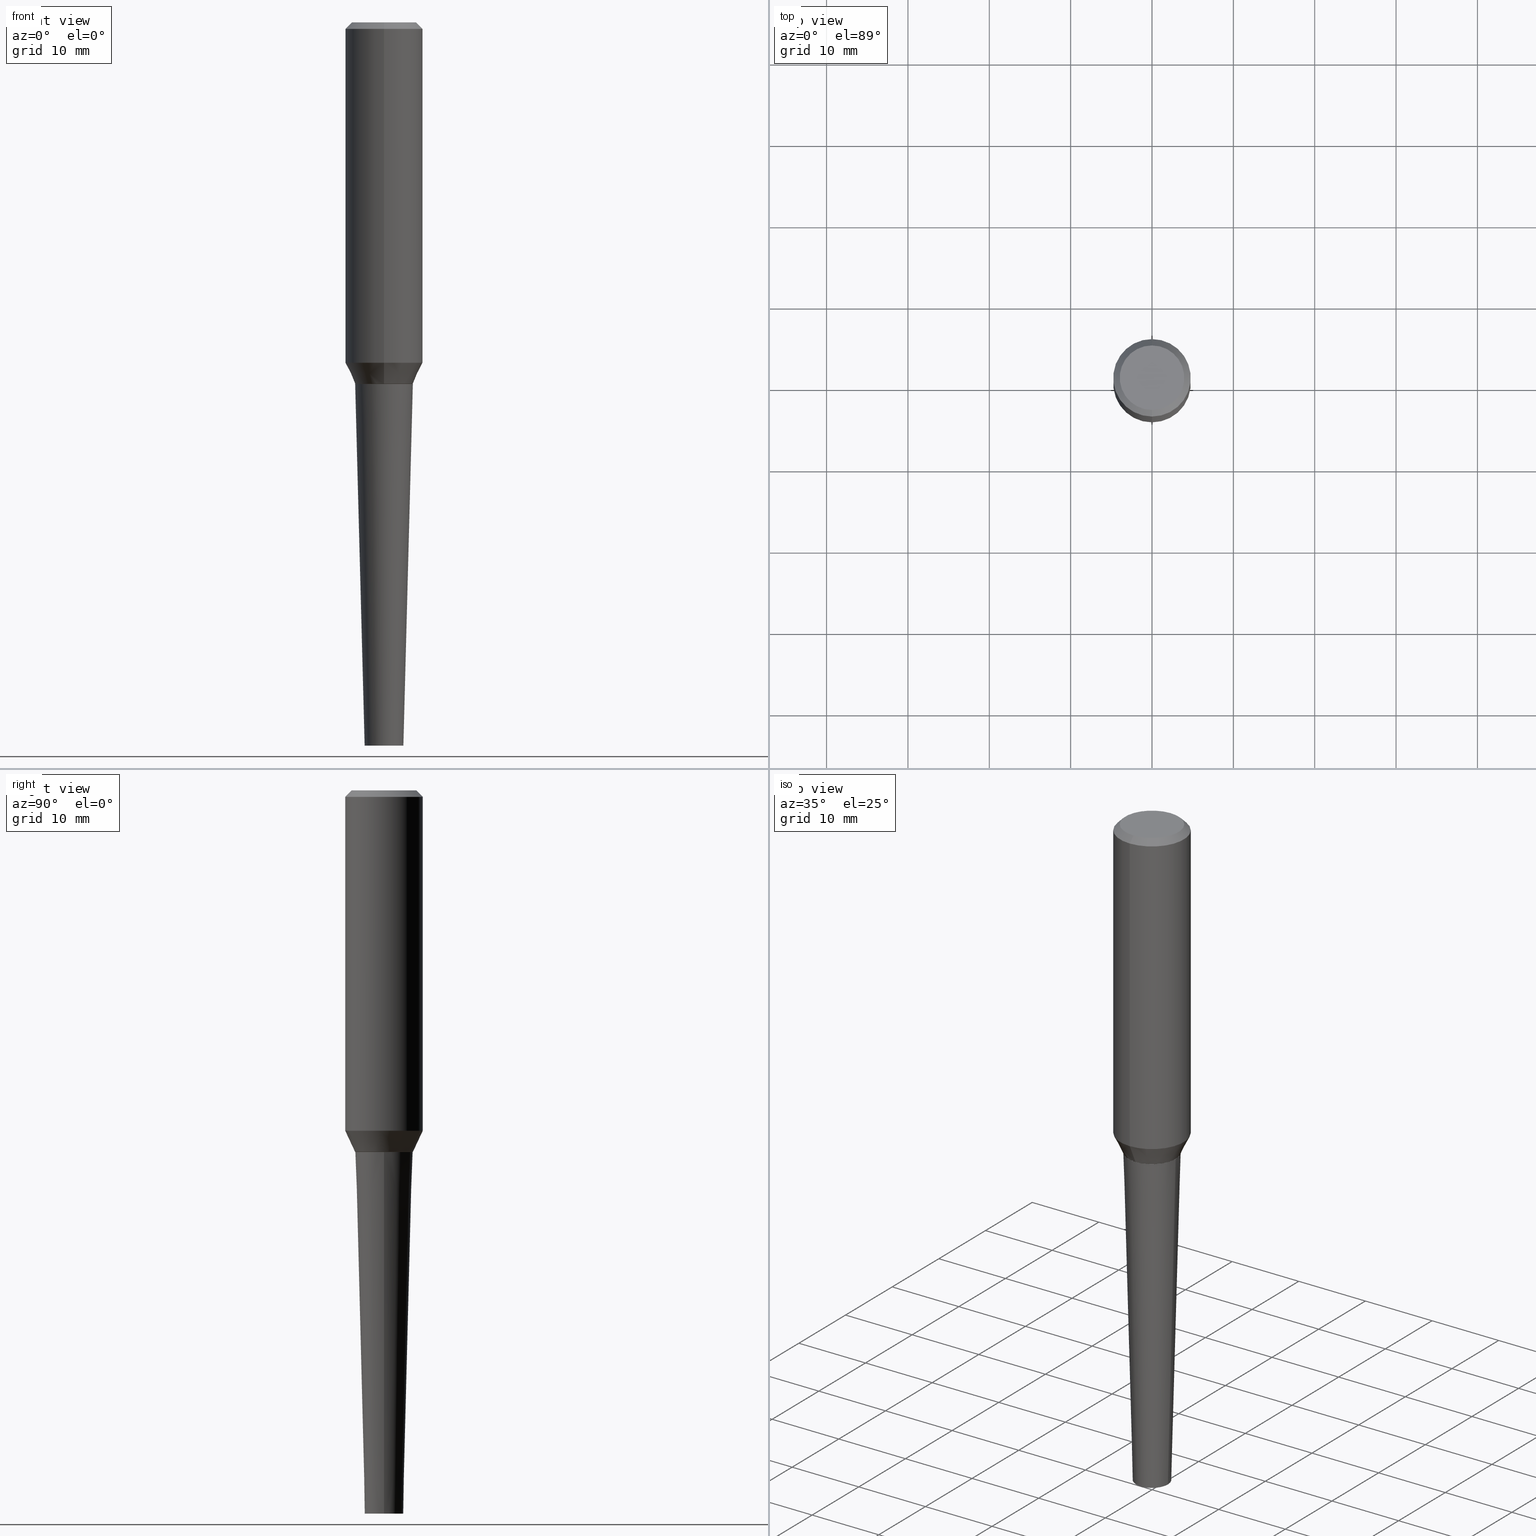
[diagram: canonical four-view strip — front | top / right | iso, engineering-drawing reading convention]
A machine part, canonical four-view strip (front | top / right | iso — engineering-drawing reading convention). The complete STEP part file that produces these views, byte-faithful:
ISO-10303-21;
HEADER;
FILE_DESCRIPTION (( 'STEP AP203' ),
    '1' );
FILE_NAME ('32317.STEP',
    '2024-03-04T15:07:11',
    ( '' ),
    ( '' ),
    'SwSTEP 2.0',
    'SolidWorks 2023',
    '' );
FILE_SCHEMA (( 'CONFIG_CONTROL_DESIGN' ));
ENDSEC;

DATA;
#1 = DIRECTION ( 'NONE',  ( -2.680706346625087460E-29, 3.154607792043817320E-15, 1.000000000000000000 ) ) ;
#2 = CC_DESIGN_DATE_AND_TIME_ASSIGNMENT ( #399, #306, ( #216 ) ) ;
#3 = CARTESIAN_POINT ( 'NONE',  ( 8.559140821647976968E-29, -1.222018468595100934E-14, -3.500000000000000000 ) ) ;
#4 = DIRECTION ( 'NONE',  ( -0.02617694830786604712, 3.676283300035236100E-15, 0.9996573249755573709 ) ) ;
#5 = AXIS2_PLACEMENT_3D ( 'NONE', #335, #19, #303 ) ;
#6 = CYLINDRICAL_SURFACE ( 'NONE', #203, 0.1875000000000001943 ) ;
#7 = VERTEX_POINT ( 'NONE', #93 ) ;
#8 = DIRECTION ( 'NONE',  ( -2.680706346625087460E-29, 3.154607792043817320E-15, 1.000000000000000000 ) ) ;
#9 = CALENDAR_DATE ( 2024, 4, 3 ) ;
#10 = DIRECTION ( 'NONE',  ( -2.680706346625087460E-29, 3.154607792043817320E-15, 1.000000000000000000 ) ) ;
#11 = FACE_OUTER_BOUND ( 'NONE', #268, .T. ) ;
#12 = EDGE_CURVE ( 'NONE', #325, #125, #123, .T. ) ;
#13 = PERSON_AND_ORGANIZATION ( #391, #353 ) ;
#14 = FACE_OUTER_BOUND ( 'NONE', #57, .T. ) ;
#15 = ORIENTED_EDGE ( 'NONE', *, *, #283, .F. ) ;
#16 = DATE_AND_TIME ( #152, #243 ) ;
#17 = EDGE_LOOP ( 'NONE', ( #376, #208, #343, #238 ) ) ;
#18 = ADVANCED_FACE ( 'NONE', ( #157 ), #110, .T. ) ;
#19 = DIRECTION ( 'NONE',  ( -2.445468806185136597E-29, 3.491481338843145583E-15, 1.000000000000000000 ) ) ;
#20 = CIRCLE ( 'NONE', #282, 0.1562500000000004718 ) ;
#21 = ORIENTED_EDGE ( 'NONE', *, *, #78, .F. ) ;
#22 = EDGE_CURVE ( 'NONE', #273, #206, #286, .T. ) ;
#23 = DIRECTION ( 'NONE',  ( -4.851104656540951653E-15, -0.7071067811865482389, -0.7071067811865467956 ) ) ;
#24 = ORIENTED_EDGE ( 'NONE', *, *, #100, .F. ) ;
#25 = PERSON_AND_ORGANIZATION_ROLE ( 'creator' ) ;
#26 = ORIENTED_EDGE ( 'NONE', *, *, #143, .F. ) ;
#27 = PERSON_AND_ORGANIZATION ( #391, #353 ) ;
#28 = EDGE_LOOP ( 'NONE', ( #344, #403 ) ) ;
#29 = VECTOR ( 'NONE', #4, 39.37007874015748143 ) ;
#30 = ADVANCED_FACE ( 'NONE', ( #65 ), #384, .T. ) ;
#31 = VECTOR ( 'NONE', #23, 39.37007874015748143 ) ;
#32 = ADVANCED_FACE ( 'NONE', ( #284 ), #315, .T. ) ;
#33 = DIRECTION ( 'NONE',  ( -6.982962677686265922E-15, -1.000000000000000000, 3.164390592661096858E-15 ) ) ;
#34 = CARTESIAN_POINT ( 'NONE',  ( 4.351437863747161445E-29, -6.007174059948126289E-15, -1.750000000000000000 ) ) ;
#35 = LINE ( 'NONE', #253, #269 ) ;
#36 = VECTOR ( 'NONE', #256, 39.37007874015748143 ) ;
#37 = VECTOR ( 'NONE', #136, 39.37007874015748143 ) ;
#38 = SECURITY_CLASSIFICATION ( '', '', #247 ) ;
#39 = CARTESIAN_POINT ( 'NONE',  ( -0.09375000000000006939, -1.155405087117591384E-14, -3.500000000000000000 ) ) ;
#40 = CARTESIAN_POINT ( 'NONE',  ( 4.075929029612539620E-29, -5.682960139228246655E-15, -1.647225283746025504 ) ) ;
#41 = APPLICATION_CONTEXT ( 'configuration controlled 3d designs of mechanical parts and assemblies' ) ;
#42 = CARTESIAN_POINT ( 'NONE',  ( -2.560261695147064885E-30, -5.851919173728164913E-16, -0.03125000000000010408 ) ) ;
#43 = COORDINATED_UNIVERSAL_TIME_OFFSET ( 5, 0, .BEHIND. ) ;
#44 = EDGE_CURVE ( 'NONE', #206, #182, #209, .T. ) ;
#45 = CIRCLE ( 'NONE', #385, 0.09375000000000006939 ) ;
#46 =( GEOMETRIC_REPRESENTATION_CONTEXT ( 3 ) GLOBAL_UNCERTAINTY_ASSIGNED_CONTEXT ( ( #387 ) ) GLOBAL_UNIT_ASSIGNED_CONTEXT ( ( #407, #370, #207 ) ) REPRESENTATION_CONTEXT ( 'NONE', 'WORKASPACE' ) );
#47 = DIRECTION ( 'NONE',  ( -2.680706346625087460E-29, 3.154607792043817320E-15, 1.000000000000000000 ) ) ;
#48 = DIRECTION ( 'NONE',  ( -2.680706346625087460E-29, 3.154607792043817320E-15, 1.000000000000000000 ) ) ;
#49 = DIRECTION ( 'NONE',  ( -6.982962677686265922E-15, -1.000000000000000000, 3.902299038693987622E-15 ) ) ;
#50 = AXIS2_PLACEMENT_3D ( 'NONE', #388, #291, #105 ) ;
#51 = CARTESIAN_POINT ( 'NONE',  ( 8.559140821647976968E-29, -1.222018468595100934E-14, -3.500000000000000000 ) ) ;
#52 = CC_DESIGN_APPROVAL ( #357, ( #216 ) ) ;
#53 = VERTEX_POINT ( 'NONE', #312 ) ;
#54 = CARTESIAN_POINT ( 'NONE',  ( -9.711580674414047337E-16, -0.1390753627460706576, -1.749999999999999334 ) ) ;
#55 = ORIENTED_EDGE ( 'NONE', *, *, #397, .F. ) ;
#56 = LENGTH_MEASURE_WITH_UNIT ( LENGTH_MEASURE( 0.02539999999999999897 ), #150 );
#57 = EDGE_LOOP ( 'NONE', ( #26, #367, #118, #24 ) ) ;
#58 = EDGE_LOOP ( 'NONE', ( #412, #156, #62, #55 ) ) ;
#59 = CARTESIAN_POINT ( 'NONE',  ( 1.309305502066175600E-15, 0.1874999999999998890, -0.03125000000000069389 ) ) ;
#60 = ADVANCED_FACE ( 'NONE', ( #189 ), #330, .T. ) ;
#61 = EDGE_CURVE ( 'NONE', #408, #53, #255, .T. ) ;
#62 = ORIENTED_EDGE ( 'NONE', *, *, #333, .T. ) ;
#63 = COORDINATED_UNIVERSAL_TIME_OFFSET ( 5, 0, .BEHIND. ) ;
#64 = DIRECTION ( 'NONE',  ( -2.680706346625087460E-29, 3.154607792043817320E-15, 1.000000000000000000 ) ) ;
#65 = FACE_OUTER_BOUND ( 'NONE', #248, .T. ) ;
#66 = CARTESIAN_POINT ( 'NONE',  ( 4.351437863747161445E-29, -6.007174059948126289E-15, -1.750000000000000000 ) ) ;
#67 = DIRECTION ( 'NONE',  ( -2.680706346625087460E-29, 3.154607792043817320E-15, 1.000000000000000000 ) ) ;
#68 = AXIS2_PLACEMENT_3D ( 'NONE', #101, #348, #311 ) ;
#69 = CIRCLE ( 'NONE', #347, 0.1400122321009284743 ) ;
#70 = DIRECTION ( 'NONE',  ( -2.445468806185136597E-29, 3.491481338843145583E-15, 1.000000000000000000 ) ) ;
#71 = ADVANCED_FACE ( 'NONE', ( #249 ), #210, .T. ) ;
#72 = CARTESIAN_POINT ( 'NONE',  ( 4.351437863747161445E-29, -6.007174059948126289E-15, -1.750000000000000000 ) ) ;
#73 = CARTESIAN_POINT ( 'NONE',  ( 4.231880785566292542E-29, -6.178386600669429355E-15, -1.750000000000000222 ) ) ;
#74 = AXIS2_PLACEMENT_3D ( 'NONE', #121, #402, #404 ) ;
#75 = LINE ( 'NONE', #114, #31 ) ;
#76 = APPROVAL_ROLE ( '' ) ;
#77 = EDGE_LOOP ( 'NONE', ( #115, #213, #278, #205 ) ) ;
#78 = EDGE_CURVE ( 'NONE', #236, #125, #194, .T. ) ;
#79 = CARTESIAN_POINT ( 'NONE',  ( -1.309305502066133790E-15, -0.1875000000000056066, -1.647225283746024838 ) ) ;
#80 = APPROVAL_DATE_TIME ( #175, #263 ) ;
#81 = CARTESIAN_POINT ( 'NONE',  ( -0.09375000000000006939, -8.336200306624222789E-15, -3.500000000000000000 ) ) ;
#82 = ORIENTED_EDGE ( 'NONE', *, *, #98, .T. ) ;
#83 = AXIS2_PLACEMENT_3D ( 'NONE', #34, #217, #381 ) ;
#84 = AXIS2_PLACEMENT_3D ( 'NONE', #66, #128, #190 ) ;
#85 = APPLICATION_PROTOCOL_DEFINITION ( 'international standard', 'config_control_design', 1994, #41 ) ;
#86 = ORIENTED_EDGE ( 'NONE', *, *, #44, .T. ) ;
#87 = CALENDAR_DATE ( 2024, 4, 3 ) ;
#88 = EDGE_LOOP ( 'NONE', ( #119, #145 ) ) ;
#89 = EDGE_LOOP ( 'NONE', ( #108, #241 ) ) ;
#90 = AXIS2_PLACEMENT_3D ( 'NONE', #166, #67, #279 ) ;
#91 = APPROVAL_ROLE ( '' ) ;
#92 = ORIENTED_EDGE ( 'NONE', *, *, #405, .F. ) ;
#93 = CARTESIAN_POINT ( 'NONE',  ( -9.711580674414047337E-16, -0.1390753627460706576, -1.749999999999999334 ) ) ;
#94 = PERSON_AND_ORGANIZATION_ROLE ( 'classification_officer' ) ;
#95 = DIRECTION ( 'NONE',  ( 6.982962677686265922E-15, 1.000000000000000000, -3.164390592661096858E-15 ) ) ;
#96 = DIRECTION ( 'NONE',  ( -1.000000000000000000, 6.982962677686265922E-15, -4.876176775795935793E-29 ) ) ;
#97 = CIRCLE ( 'NONE', #365, 0.09375000000000006939 ) ;
#98 = EDGE_CURVE ( 'NONE', #228, #325, #45, .T. ) ;
#99 = DIRECTION ( 'NONE',  ( -6.982962677686265922E-15, -1.000000000000000000, 3.902299038693987622E-15 ) ) ;
#100 = EDGE_CURVE ( 'NONE', #398, #177, #309, .T. ) ;
#101 = CARTESIAN_POINT ( 'NONE',  ( -3.397982428467407694E-30, -4.866104238714468673E-16, 7.122683174012249869E-18 ) ) ;
#102 = DIRECTION ( 'NONE',  ( -2.445468806185136597E-29, 3.491481338843145583E-15, 1.000000000000000000 ) ) ;
#103 = AXIS2_PLACEMENT_3D ( 'NONE', #42, #48, #327 ) ;
#104 = APPROVAL_PERSON_ORGANIZATION ( #237, #357, #91 ) ;
#105 = DIRECTION ( 'NONE',  ( -6.982962677686265922E-15, -1.000000000000000000, 3.154607792043817320E-15 ) ) ;
#106 = CARTESIAN_POINT ( 'NONE',  ( -3.397982428467408395E-30, -4.866104238714468673E-16, 1.912385453283800096E-17 ) ) ;
#107 = CARTESIAN_POINT ( 'NONE',  ( 1.309305502066175600E-15, 0.1874999999999998890, -0.03125000000000069389 ) ) ;
#108 = ORIENTED_EDGE ( 'NONE', *, *, #131, .F. ) ;
#109 = ADVANCED_FACE ( 'NONE', ( #377 ), #316, .T. ) ;
#110 = CONICAL_SURFACE ( 'NONE', #90, 0.1400122321009284743, 0.4363323129985814397 ) ;
#111 = AXIS2_PLACEMENT_3D ( 'NONE', #383, #346, #281 ) ;
#112 = CARTESIAN_POINT ( 'NONE',  ( 0.1395753627460647461, -7.084741891755795010E-15, -1.750000000000000000 ) ) ;
#113 = DIRECTION ( 'NONE',  ( -6.982962677686266711E-15, -1.000000000000000000, 2.913971193241881555E-15 ) ) ;
#114 = CARTESIAN_POINT ( 'NONE',  ( -1.286343374582167887E-15, -0.1875000000000010270, -0.03124999999999950734 ) ) ;
#115 = ORIENTED_EDGE ( 'NONE', *, *, #275, .T. ) ;
#116 = ADVANCED_FACE ( 'NONE', ( #354 ), #187, .F. ) ;
#117 = APPROVAL_STATUS ( 'not_yet_approved' ) ;
#118 = ORIENTED_EDGE ( 'NONE', *, *, #396, .T. ) ;
#119 = ORIENTED_EDGE ( 'NONE', *, *, #61, .T. ) ;
#120 = EDGE_LOOP ( 'NONE', ( #299, #322, #406, #371 ) ) ;
#121 = CARTESIAN_POINT ( 'NONE',  ( 6.546527510331736872E-16, 0.09374999999998785694, -3.500000000000000444 ) ) ;
#122 = VECTOR ( 'NONE', #297, 39.37007874015748143 ) ;
#123 = LINE ( 'NONE', #39, #29 ) ;
#124 = DATE_AND_TIME ( #155, #317 ) ;
#125 = VERTEX_POINT ( 'NONE', #220 ) ;
#126 = DIRECTION ( 'NONE',  ( 1.000000000000000000, -6.982962677686257244E-15, 0.000000000000000000 ) ) ;
#127 = DIRECTION ( 'NONE',  ( -2.680706346625087460E-29, 3.154607792043817320E-15, 1.000000000000000000 ) ) ;
#128 = DIRECTION ( 'NONE',  ( -2.680706346625087460E-29, 3.154607792043817320E-15, 1.000000000000000000 ) ) ;
#129 = MANIFOLD_SOLID_BREP ( 'Body-Move/Copy2[2]', #154 ) ;
#130 = DIRECTION ( 'NONE',  ( 2.438088387897960049E-29, -3.491481338843145188E-15, -1.000000000000000000 ) ) ;
#131 = EDGE_CURVE ( 'NONE', #7, #305, #139, .T. ) ;
#132 = MANIFOLD_SOLID_BREP ( 'Body-Move/Copy2[1]', #289 ) ;
#133 = CARTESIAN_POINT ( 'NONE',  ( -9.777001911802870369E-16, -0.1400122321009344972, -1.749063130645135633 ) ) ;
#134 = VECTOR ( 'NONE', #240, 39.37007874015748143 ) ;
#135 = DIRECTION ( 'NONE',  ( -2.680706346625087460E-29, 3.154607792043817320E-15, 1.000000000000000000 ) ) ;
#136 = DIRECTION ( 'NONE',  ( 5.024295867788151531E-15, 0.7071067811865625607, 0.7071067811865324737 ) ) ;
#137 = EDGE_CURVE ( 'NONE', #374, #182, #35, .T. ) ;
#138 = DIRECTION ( 'NONE',  ( -6.982962677686265133E-15, -1.000000000000000000, 3.928586544336106530E-15 ) ) ;
#139 = CIRCLE ( 'NONE', #84, 0.1390753627460646624 ) ;
#140 = CC_DESIGN_APPROVAL ( #340, ( #163 ) ) ;
#141 = LINE ( 'NONE', #202, #37 ) ;
#142 = CARTESIAN_POINT ( 'NONE',  ( 4.348926392121620079E-29, -6.004218604581146241E-15, -1.749063130645136077 ) ) ;
#143 = EDGE_CURVE ( 'NONE', #182, #398, #193, .T. ) ;
#144 = LINE ( 'NONE', #54, #234 ) ;
#145 = ORIENTED_EDGE ( 'NONE', *, *, #363, .T. ) ;
#146 = CIRCLE ( 'NONE', #168, 0.1390753627460646624 ) ;
#147 = CC_DESIGN_SECURITY_CLASSIFICATION ( #38, ( #163 ) ) ;
#148 = CARTESIAN_POINT ( 'NONE',  ( 1.200196710227327485E-15, 0.1562500000000000000, -4.857847843328356839E-16 ) ) ;
#149 = ORIENTED_EDGE ( 'NONE', *, *, #245, .T. ) ;
#150 =( LENGTH_UNIT ( ) NAMED_UNIT ( * ) SI_UNIT ( $, .METRE. ) );
#151 = ORIENTED_EDGE ( 'NONE', *, *, #131, .T. ) ;
#152 = CALENDAR_DATE ( 2024, 4, 3 ) ;
#153 = ORIENTED_EDGE ( 'NONE', *, *, #275, .F. ) ;
#154 = CLOSED_SHELL ( 'NONE', ( #109, #362, #30, #174, #60, #287, #215, #32, #352, #18 ) ) ;
#155 = CALENDAR_DATE ( 2024, 4, 3 ) ;
#156 = ORIENTED_EDGE ( 'NONE', *, *, #158, .T. ) ;
#157 = FACE_OUTER_BOUND ( 'NONE', #17, .T. ) ;
#158 = EDGE_CURVE ( 'NONE', #325, #228, #97, .T. ) ;
#159 = DIRECTION ( 'NONE',  ( 2.680706346625087460E-29, -3.154607792043817320E-15, -1.000000000000000000 ) ) ;
#160 = AXIS2_PLACEMENT_3D ( 'NONE', #161, #380, #95 ) ;
#161 = CARTESIAN_POINT ( 'NONE',  ( -2.560261695147064885E-30, -5.851919173728164913E-16, -0.03125000000000010408 ) ) ;
#162 = DIMENSIONAL_EXPONENTS ( 1.000000000000000000, 0.000000000000000000, 0.000000000000000000, 0.000000000000000000, 0.000000000000000000, 0.000000000000000000, 0.000000000000000000 ) ;
#163 = PRODUCT_DEFINITION_FORMATION_WITH_SPECIFIED_SOURCE ( 'ANY', '', #239, .NOT_KNOWN. ) ;
#164 = DIRECTION ( 'NONE',  ( -6.982962677686266711E-15, -1.000000000000000000, 2.913971193241881555E-15 ) ) ;
#165 = EDGE_CURVE ( 'NONE', #182, #206, #290, .T. ) ;
#166 = CARTESIAN_POINT ( 'NONE',  ( 4.348926392121620079E-29, -6.004218604581146241E-15, -1.749063130645136077 ) ) ;
#167 = CARTESIAN_POINT ( 'NONE',  ( 9.915183157964881003E-16, 0.1390753627460586395, -1.750000000000000444 ) ) ;
#168 = AXIS2_PLACEMENT_3D ( 'NONE', #72, #329, #170 ) ;
#169 = DIRECTION ( 'NONE',  ( 6.982962677686265922E-15, 1.000000000000000000, -3.154607792043817320E-15 ) ) ;
#170 = DIRECTION ( 'NONE',  ( -6.982962677686265133E-15, -1.000000000000000000, 3.928586544336106530E-15 ) ) ;
#171 = DIRECTION ( 'NONE',  ( -6.982962677686265922E-15, -1.000000000000000000, 3.154607792043817320E-15 ) ) ;
#172 = AXIS2_PLACEMENT_3D ( 'NONE', #51, #196, #390 ) ;
#173 = LINE ( 'NONE', #386, #122 ) ;
#174 = ADVANCED_FACE ( 'NONE', ( #258 ), #372, .T. ) ;
#175 = DATE_AND_TIME ( #9, #223 ) ;
#176 = PERSON_AND_ORGANIZATION ( #391, #353 ) ;
#177 = VERTEX_POINT ( 'NONE', #230 ) ;
#178 = ORIENTED_EDGE ( 'NONE', *, *, #143, .T. ) ;
#179 = APPROVAL_PERSON_ORGANIZATION ( #13, #263, #76 ) ;
#180 = EDGE_LOOP ( 'NONE', ( #401, #338 ) ) ;
#181 = PERSON_AND_ORGANIZATION_ROLE ( 'design_owner' ) ;
#182 = VERTEX_POINT ( 'NONE', #326 ) ;
#183 = ORIENTED_EDGE ( 'NONE', *, *, #396, .F. ) ;
#184 = AXIS2_PLACEMENT_3D ( 'NONE', #254, #159, #252 ) ;
#185 = CIRCLE ( 'NONE', #5, 0.1395753627460647461 ) ;
#186 = PERSON_AND_ORGANIZATION ( #391, #353 ) ;
#187 = PLANE ( 'NONE',  #250 ) ;
#188 = ADVANCED_BREP_SHAPE_REPRESENTATION ( '32317', ( #132, #129, #251 ), #46 ) ;
#189 = FACE_OUTER_BOUND ( 'NONE', #244, .T. ) ;
#190 = DIRECTION ( 'NONE',  ( -6.982962677686265133E-15, -1.000000000000000000, 3.928586544336106530E-15 ) ) ;
#191 = PRODUCT_RELATED_PRODUCT_CATEGORY ( 'detail', '', ( #239 ) ) ;
#192 = AXIS2_PLACEMENT_3D ( 'NONE', #219, #1, #164 ) ;
#193 = LINE ( 'NONE', #318, #416 ) ;
#194 = CIRCLE ( 'NONE', #400, 0.1395753627460647461 ) ;
#195 = DIRECTION ( 'NONE',  ( -2.445468806185136597E-29, 3.491481338843145583E-15, 1.000000000000000000 ) ) ;
#196 = DIRECTION ( 'NONE',  ( -2.445468806185136597E-29, 3.491481338843145583E-15, 1.000000000000000000 ) ) ;
#197 = FACE_OUTER_BOUND ( 'NONE', #89, .T. ) ;
#198 = VECTOR ( 'NONE', #395, 39.37007874015748143 ) ;
#199 = PLANE ( 'NONE',  #409 ) ;
#200 = PLANE ( 'NONE',  #242 ) ;
#201 = CC_DESIGN_PERSON_AND_ORGANIZATION_ASSIGNMENT ( #277, #411, ( #163 ) ) ;
#202 = CARTESIAN_POINT ( 'NONE',  ( 9.881898872242144353E-16, 0.1390753627460586395, -1.750000000000000444 ) ) ;
#203 = AXIS2_PLACEMENT_3D ( 'NONE', #106, #226, #356 ) ;
#204 = PLANE ( 'NONE',  #74 ) ;
#205 = ORIENTED_EDGE ( 'NONE', *, *, #22, .F. ) ;
#206 = VERTEX_POINT ( 'NONE', #79 ) ;
#207 =( NAMED_UNIT ( * ) SI_UNIT ( $, .STERADIAN. ) SOLID_ANGLE_UNIT ( ) );
#208 = ORIENTED_EDGE ( 'NONE', *, *, #257, .T. ) ;
#209 = CIRCLE ( 'NONE', #192, 0.1874999999999999445 ) ;
#210 = CONICAL_SURFACE ( 'NONE', #111, 0.09375000000000006939, 0.02617993877990783605 ) ;
#211 = CARTESIAN_POINT ( 'NONE',  ( 0.000000000000000000, 0.000000000000000000, 0.000000000000000000 ) ) ;
#212 = ORIENTED_EDGE ( 'NONE', *, *, #363, .F. ) ;
#213 = ORIENTED_EDGE ( 'NONE', *, *, #137, .T. ) ;
#214 = COORDINATED_UNIVERSAL_TIME_OFFSET ( 5, 0, .BEHIND. ) ;
#215 = ADVANCED_FACE ( 'NONE', ( #359 ), #200, .F. ) ;
#216 = PRODUCT_DEFINITION ( 'UNKNOWN', '', #163, #225 ) ;
#217 = DIRECTION ( 'NONE',  ( -2.680706346625087460E-29, 3.154607792043817320E-15, 1.000000000000000000 ) ) ;
#218 = APPROVAL_PERSON_ORGANIZATION ( #27, #340, #265 ) ;
#219 = CARTESIAN_POINT ( 'NONE',  ( 4.075929029612539620E-29, -5.682960139228246655E-15, -1.647225283746025504 ) ) ;
#220 = CARTESIAN_POINT ( 'NONE',  ( -0.1395753627460647461, -5.118349742072530161E-15, -1.750000000000000000 ) ) ;
#221 = CARTESIAN_POINT ( 'NONE',  ( -2.560261695147064885E-30, -5.851919173728164913E-16, -0.03125000000000010408 ) ) ;
#222 = CARTESIAN_POINT ( 'NONE',  ( 4.348926392121620079E-29, -6.004218604581146241E-15, -1.749063130645136077 ) ) ;
#223 = LOCAL_TIME ( 10, 7, 11.00000000000000000, #43 ) ;
#224 = CARTESIAN_POINT ( 'NONE',  ( 4.348926392121620079E-29, -6.004218604581146241E-15, -1.749063130645136077 ) ) ;
#225 = DESIGN_CONTEXT ( 'detailed design', #231, 'design' ) ;
#226 = DIRECTION ( 'NONE',  ( -2.680706346625087460E-29, 3.154607792043817320E-15, 1.000000000000000000 ) ) ;
#227 = FACE_OUTER_BOUND ( 'NONE', #266, .T. ) ;
#228 = VERTEX_POINT ( 'NONE', #295 ) ;
#229 = CIRCLE ( 'NONE', #308, 0.1400122321009284743 ) ;
#230 = CARTESIAN_POINT ( 'NONE',  ( -1.286343374582167887E-15, -0.1875000000000010270, -0.03124999999999950734 ) ) ;
#231 = APPLICATION_CONTEXT ( 'configuration controlled 3d designs of mechanical parts and assemblies' ) ;
#232 = DIRECTION ( 'NONE',  ( -2.680706346625087460E-29, 3.154607792043817320E-15, 1.000000000000000000 ) ) ;
#233 = DIRECTION ( 'NONE',  ( -4.937700262164637972E-15, -0.7071067811865580088, 0.7071067811865368036 ) ) ;
#234 = VECTOR ( 'NONE', #233, 39.37007874015748854 ) ;
#235 = LINE ( 'NONE', #272, #134 ) ;
#236 = VERTEX_POINT ( 'NONE', #112 ) ;
#237 = PERSON_AND_ORGANIZATION ( #391, #353 ) ;
#238 = ORIENTED_EDGE ( 'NONE', *, *, #165, .F. ) ;
#239 = PRODUCT ( '32317', '32317', '', ( #270 ) ) ;
#240 = DIRECTION ( 'NONE',  ( -2.680706346625087460E-29, 3.154607792043817320E-15, 1.000000000000000000 ) ) ;
#241 = ORIENTED_EDGE ( 'NONE', *, *, #288, .F. ) ;
#242 = AXIS2_PLACEMENT_3D ( 'NONE', #260, #394, #169 ) ;
#243 = LOCAL_TIME ( 10, 7, 11.00000000000000000, #366 ) ;
#244 = EDGE_LOOP ( 'NONE', ( #15, #307, #334, #336 ) ) ;
#245 = EDGE_CURVE ( 'NONE', #177, #398, #332, .T. ) ;
#246 = CC_DESIGN_DATE_AND_TIME_ASSIGNMENT ( #331, #328, ( #38 ) ) ;
#247 = SECURITY_CLASSIFICATION_LEVEL ( 'unclassified' ) ;
#248 = EDGE_LOOP ( 'NONE', ( #212, #259, #149, #369 ) ) ;
#249 = FACE_OUTER_BOUND ( 'NONE', #58, .T. ) ;
#250 = AXIS2_PLACEMENT_3D ( 'NONE', #349, #130, #96 ) ;
#251 = AXIS2_PLACEMENT_3D ( 'NONE', #211, #341, #364 ) ;
#252 = DIRECTION ( 'NONE',  ( 6.982962677686265922E-15, 1.000000000000000000, -3.164390592661096858E-15 ) ) ;
#253 = CARTESIAN_POINT ( 'NONE',  ( 9.948467443687617652E-16, 0.1400122321009224513, -1.749063130645136743 ) ) ;
#254 = CARTESIAN_POINT ( 'NONE',  ( -2.560261695147064885E-30, -5.851919173728164913E-16, -0.03125000000000010408 ) ) ;
#255 = CIRCLE ( 'NONE', #68, 0.1562500000000004718 ) ;
#256 = DIRECTION ( 'NONE',  ( -2.951127548643968161E-15, -0.4226182617406956665, 0.9063077870366517130 ) ) ;
#257 = EDGE_CURVE ( 'NONE', #374, #273, #229, .T. ) ;
#258 = FACE_OUTER_BOUND ( 'NONE', #274, .T. ) ;
#259 = ORIENTED_EDGE ( 'NONE', *, *, #389, .T. ) ;
#260 = CARTESIAN_POINT ( 'NONE',  ( 1.091087918388478976E-15, 0.1562500000000000000, -4.797841986534229262E-16 ) ) ;
#261 = CARTESIAN_POINT ( 'NONE',  ( 4.351437863747161445E-29, -6.007174059948126289E-15, -1.750000000000000000 ) ) ;
#262 = CALENDAR_DATE ( 2024, 4, 3 ) ;
#263 = APPROVAL ( #361, 'UNSPECIFIED' ) ;
#264 = LINE ( 'NONE', #107, #198 ) ;
#265 = APPROVAL_ROLE ( '' ) ;
#266 = EDGE_LOOP ( 'NONE', ( #86, #178, #300, #183 ) ) ;
#267 = FACE_OUTER_BOUND ( 'NONE', #28, .T. ) ;
#268 = EDGE_LOOP ( 'NONE', ( #82, #392, #21, #302 ) ) ;
#269 = VECTOR ( 'NONE', #350, 39.37007874015748854 ) ;
#270 = MECHANICAL_CONTEXT ( 'NONE', #41, 'mechanical' ) ;
#271 = ORIENTED_EDGE ( 'NONE', *, *, #283, .T. ) ;
#272 = CARTESIAN_POINT ( 'NONE',  ( -1.309305502066179544E-15, -0.1875000000000006661, 6.106128155410544140E-16 ) ) ;
#273 = VERTEX_POINT ( 'NONE', #296 ) ;
#274 = EDGE_LOOP ( 'NONE', ( #151, #271, #153, #92 ) ) ;
#275 = EDGE_CURVE ( 'NONE', #273, #374, #69, .T. ) ;
#276 = LOCAL_TIME ( 10, 7, 11.00000000000000000, #373 ) ;
#277 = PERSON_AND_ORGANIZATION ( #391, #353 ) ;
#278 = ORIENTED_EDGE ( 'NONE', *, *, #44, .F. ) ;
#279 = DIRECTION ( 'NONE',  ( -6.982962677686265922E-15, -1.000000000000000000, 3.902299038693987622E-15 ) ) ;
#280 = CC_DESIGN_PERSON_AND_ORGANIZATION_ASSIGNMENT ( #186, #310, ( #163 ) ) ;
#281 = DIRECTION ( 'NONE',  ( 1.000000000000000000, -6.982962677686257244E-15, 0.000000000000000000 ) ) ;
#282 = AXIS2_PLACEMENT_3D ( 'NONE', #324, #47, #293 ) ;
#283 = EDGE_CURVE ( 'NONE', #305, #374, #141, .T. ) ;
#284 = FACE_OUTER_BOUND ( 'NONE', #120, .T. ) ;
#285 = DIRECTION ( 'NONE',  ( -2.680706346625087460E-29, 3.154607792043817320E-15, 1.000000000000000000 ) ) ;
#286 = LINE ( 'NONE', #133, #36 ) ;
#287 = ADVANCED_FACE ( 'NONE', ( #197 ), #199, .F. ) ;
#288 = EDGE_CURVE ( 'NONE', #305, #7, #146, .T. ) ;
#289 = CLOSED_SHELL ( 'NONE', ( #304, #413, #71, #116 ) ) ;
#290 = CIRCLE ( 'NONE', #351, 0.1874999999999999445 ) ;
#291 = DIRECTION ( 'NONE',  ( -2.680706346625087460E-29, 3.154607792043817320E-15, 1.000000000000000000 ) ) ;
#292 = SHAPE_DEFINITION_REPRESENTATION ( #342, #188 ) ;
#293 = DIRECTION ( 'NONE',  ( -6.982962677686266711E-15, -1.000000000000000000, 3.154607792043817714E-15 ) ) ;
#294 = CC_DESIGN_PERSON_AND_ORGANIZATION_ASSIGNMENT ( #337, #25, ( #216 ) ) ;
#295 = CARTESIAN_POINT ( 'NONE',  ( 0.09375000000000006939, -1.287483743698409606E-14, -3.500000000000000000 ) ) ;
#296 = CARTESIAN_POINT ( 'NONE',  ( -9.777001911802860508E-16, -0.1400122321009343862, -1.749063130645135633 ) ) ;
#297 = DIRECTION ( 'NONE',  ( 0.02617694830786604712, 3.307492242340466312E-15, 0.9996573249755573709 ) ) ;
#298 = APPLICATION_PROTOCOL_DEFINITION ( 'international standard', 'config_control_design', 1994, #231 ) ;
#299 = ORIENTED_EDGE ( 'NONE', *, *, #389, .F. ) ;
#300 = ORIENTED_EDGE ( 'NONE', *, *, #245, .F. ) ;
#301 = APPROVAL_DATE_TIME ( #16, #357 ) ;
#302 = ORIENTED_EDGE ( 'NONE', *, *, #333, .F. ) ;
#303 = DIRECTION ( 'NONE',  ( 1.000000000000000000, -6.982962677686264344E-15, 0.000000000000000000 ) ) ;
#304 = ADVANCED_FACE ( 'NONE', ( #11 ), #378, .T. ) ;
#305 = VERTEX_POINT ( 'NONE', #167 ) ;
#306 = DATE_TIME_ROLE ( 'creation_date' ) ;
#307 = ORIENTED_EDGE ( 'NONE', *, *, #288, .T. ) ;
#308 = AXIS2_PLACEMENT_3D ( 'NONE', #224, #232, #49 ) ;
#309 = CIRCLE ( 'NONE', #393, 0.1875000000000004718 ) ;
#310 = PERSON_AND_ORGANIZATION_ROLE ( 'creator' ) ;
#311 = DIRECTION ( 'NONE',  ( -6.982962677686266711E-15, -1.000000000000000000, 3.154607792043817714E-15 ) ) ;
#312 = CARTESIAN_POINT ( 'NONE',  ( -1.179148093366988298E-15, -0.1562500000000009714, 5.000301506808602607E-16 ) ) ;
#313 = EDGE_CURVE ( 'NONE', #408, #398, #264, .T. ) ;
#314 = CARTESIAN_POINT ( 'NONE',  ( 8.559140821647976968E-29, -1.222018468595100934E-14, -3.500000000000000000 ) ) ;
#315 = CONICAL_SURFACE ( 'NONE', #184, 0.1875000000000004718, 0.7853981633974461696 ) ;
#316 = CONICAL_SURFACE ( 'NONE', #339, 0.1400122321009284743, 0.4363323129985814397 ) ;
#317 = LOCAL_TIME ( 10, 7, 11.00000000000000000, #63 ) ;
#318 = CARTESIAN_POINT ( 'NONE',  ( 1.332267629550185482E-15, 0.1874999999999996947, -5.723651064753783135E-16 ) ) ;
#319 = DIRECTION ( 'NONE',  ( 1.000000000000000000, -6.982962677686257244E-15, 0.000000000000000000 ) ) ;
#320 = CC_DESIGN_PERSON_AND_ORGANIZATION_ASSIGNMENT ( #375, #94, ( #38 ) ) ;
#321 = CYLINDRICAL_SURFACE ( 'NONE', #50, 0.1875000000000001943 ) ;
#322 = ORIENTED_EDGE ( 'NONE', *, *, #61, .F. ) ;
#323 = AXIS2_PLACEMENT_3D ( 'NONE', #261, #8, #138 ) ;
#324 = CARTESIAN_POINT ( 'NONE',  ( -3.397982428467407694E-30, -4.866104238714468673E-16, 7.122683174012249869E-18 ) ) ;
#325 = VERTEX_POINT ( 'NONE', #81 ) ;
#326 = CARTESIAN_POINT ( 'NONE',  ( 1.332267629550207373E-15, 0.1874999999999942824, -1.647225283746025948 ) ) ;
#327 = DIRECTION ( 'NONE',  ( -6.982962677686265922E-15, -1.000000000000000000, 3.164390592661096858E-15 ) ) ;
#328 = DATE_TIME_ROLE ( 'classification_date' ) ;
#329 = DIRECTION ( 'NONE',  ( -2.680706346625087460E-29, 3.154607792043817320E-15, 1.000000000000000000 ) ) ;
#330 = CONICAL_SURFACE ( 'NONE', #83, 0.1390753627460646624, 0.7853981633974664867 ) ;
#331 = DATE_AND_TIME ( #262, #379 ) ;
#332 = CIRCLE ( 'NONE', #103, 0.1875000000000004718 ) ;
#333 = EDGE_CURVE ( 'NONE', #228, #236, #173, .T. ) ;
#334 = ORIENTED_EDGE ( 'NONE', *, *, #405, .T. ) ;
#335 = CARTESIAN_POINT ( 'NONE',  ( 4.279570410823988484E-29, -6.110092342975504671E-15, -1.750000000000000000 ) ) ;
#336 = ORIENTED_EDGE ( 'NONE', *, *, #257, .F. ) ;
#337 = PERSON_AND_ORGANIZATION ( #391, #353 ) ;
#338 = ORIENTED_EDGE ( 'NONE', *, *, #397, .T. ) ;
#339 = AXIS2_PLACEMENT_3D ( 'NONE', #222, #64, #99 ) ;
#340 = APPROVAL ( #117, 'UNSPECIFIED' ) ;
#341 = DIRECTION ( 'NONE',  ( 0.000000000000000000, 0.000000000000000000, 1.000000000000000000 ) ) ;
#342 = PRODUCT_DEFINITION_SHAPE ( 'NONE', 'NONE',  #216 ) ;
#343 = ORIENTED_EDGE ( 'NONE', *, *, #22, .T. ) ;
#344 = ORIENTED_EDGE ( 'NONE', *, *, #98, .F. ) ;
#345 = APPROVAL_DATE_TIME ( #124, #340 ) ;
#346 = DIRECTION ( 'NONE',  ( -2.445468806185136597E-29, 3.491481338843145583E-15, 1.000000000000000000 ) ) ;
#347 = AXIS2_PLACEMENT_3D ( 'NONE', #142, #10, #355 ) ;
#348 = DIRECTION ( 'NONE',  ( -2.680706346625087460E-29, 3.154607792043817320E-15, 1.000000000000000000 ) ) ;
#349 = CARTESIAN_POINT ( 'NONE',  ( 9.746495487803351072E-16, 0.1395753627460586399, -1.750000000000000666 ) ) ;
#350 = DIRECTION ( 'NONE',  ( 3.002883358794114662E-15, 0.4226182617407013842, 0.9063077870366489375 ) ) ;
#351 = AXIS2_PLACEMENT_3D ( 'NONE', #40, #135, #113 ) ;
#352 = ADVANCED_FACE ( 'NONE', ( #14 ), #321, .T. ) ;
#353 = ORGANIZATION ( 'UNSPECIFIED', 'UNSPECIFIED', '' ) ;
#354 = FACE_OUTER_BOUND ( 'NONE', #180, .T. ) ;
#355 = DIRECTION ( 'NONE',  ( -6.982962677686265922E-15, -1.000000000000000000, 3.902299038693987622E-15 ) ) ;
#356 = DIRECTION ( 'NONE',  ( -6.982962677686265922E-15, -1.000000000000000000, 3.154607792043817320E-15 ) ) ;
#357 = APPROVAL ( #368, 'UNSPECIFIED' ) ;
#358 = CARTESIAN_POINT ( 'NONE',  ( 9.948467443687625541E-16, 0.1400122321009225623, -1.749063130645136743 ) ) ;
#359 = FACE_OUTER_BOUND ( 'NONE', #88, .T. ) ;
#360 = DIRECTION ( 'NONE',  ( -2.680706346625086899E-29, 3.154607792043817320E-15, 1.000000000000000000 ) ) ;
#361 = APPROVAL_STATUS ( 'not_yet_approved' ) ;
#362 = ADVANCED_FACE ( 'NONE', ( #227 ), #6, .T. ) ;
#363 = EDGE_CURVE ( 'NONE', #53, #408, #20, .T. ) ;
#364 = DIRECTION ( 'NONE',  ( 1.000000000000000000, 0.000000000000000000, 0.000000000000000000 ) ) ;
#365 = AXIS2_PLACEMENT_3D ( 'NONE', #3, #195, #319 ) ;
#366 = COORDINATED_UNIVERSAL_TIME_OFFSET ( 5, 0, .BEHIND. ) ;
#367 = ORIENTED_EDGE ( 'NONE', *, *, #165, .T. ) ;
#368 = APPROVAL_STATUS ( 'not_yet_approved' ) ;
#369 = ORIENTED_EDGE ( 'NONE', *, *, #313, .F. ) ;
#370 =( NAMED_UNIT ( * ) PLANE_ANGLE_UNIT ( ) SI_UNIT ( $, .RADIAN. ) );
#371 = ORIENTED_EDGE ( 'NONE', *, *, #100, .T. ) ;
#372 = CONICAL_SURFACE ( 'NONE', #323, 0.1390753627460646624, 0.7853981633974664867 ) ;
#373 = COORDINATED_UNIVERSAL_TIME_OFFSET ( 5, 0, .BEHIND. ) ;
#374 = VERTEX_POINT ( 'NONE', #358 ) ;
#375 = PERSON_AND_ORGANIZATION ( #391, #353 ) ;
#376 = ORIENTED_EDGE ( 'NONE', *, *, #137, .F. ) ;
#377 = FACE_OUTER_BOUND ( 'NONE', #77, .T. ) ;
#378 = CONICAL_SURFACE ( 'NONE', #172, 0.09375000000000006939, 0.02617993877990783605 ) ;
#379 = LOCAL_TIME ( 10, 7, 11.00000000000000000, #214 ) ;
#380 = DIRECTION ( 'NONE',  ( 2.680706346625087460E-29, -3.154607792043817320E-15, -1.000000000000000000 ) ) ;
#381 = DIRECTION ( 'NONE',  ( -6.982962677686265133E-15, -1.000000000000000000, 3.928586544336106530E-15 ) ) ;
#382 = CC_DESIGN_PERSON_AND_ORGANIZATION_ASSIGNMENT ( #176, #181, ( #239 ) ) ;
#383 = CARTESIAN_POINT ( 'NONE',  ( 8.559140821647976968E-29, -1.222018468595100934E-14, -3.500000000000000000 ) ) ;
#384 = CONICAL_SURFACE ( 'NONE', #160, 0.1875000000000004718, 0.7853981633974461696 ) ;
#385 = AXIS2_PLACEMENT_3D ( 'NONE', #314, #70, #126 ) ;
#386 = CARTESIAN_POINT ( 'NONE',  ( 0.09375000000000006939, -1.287483743698409606E-14, -3.500000000000000000 ) ) ;
#387 = UNCERTAINTY_MEASURE_WITH_UNIT (LENGTH_MEASURE( 1.000000000000000082E-05 ), #407, 'distance_accuracy_value', 'NONE');
#388 = CARTESIAN_POINT ( 'NONE',  ( -3.397982428467408395E-30, -4.866104238714468673E-16, 1.912385453283800096E-17 ) ) ;
#389 = EDGE_CURVE ( 'NONE', #53, #177, #75, .T. ) ;
#390 = DIRECTION ( 'NONE',  ( 1.000000000000000000, -6.982962677686257244E-15, 0.000000000000000000 ) ) ;
#391 = PERSON ( 'UNSPECIFIED', 'UNSPECIFIED', 'UNSPECIFIED', ('UNSPECIFIED'), ('UNSPECIFIED'), ('UNSPECIFIED') ) ;
#392 = ORIENTED_EDGE ( 'NONE', *, *, #12, .T. ) ;
#393 = AXIS2_PLACEMENT_3D ( 'NONE', #221, #127, #33 ) ;
#394 = DIRECTION ( 'NONE',  ( 2.680706346625086899E-29, -3.154607792043817320E-15, -1.000000000000000000 ) ) ;
#395 = DIRECTION ( 'NONE',  ( 4.937700262164538576E-15, 0.7071067811865437980, -0.7071067811865512365 ) ) ;
#396 = EDGE_CURVE ( 'NONE', #206, #177, #235, .T. ) ;
#397 = EDGE_CURVE ( 'NONE', #125, #236, #185, .T. ) ;
#398 = VERTEX_POINT ( 'NONE', #59 ) ;
#399 = DATE_AND_TIME ( #87, #276 ) ;
#400 = AXIS2_PLACEMENT_3D ( 'NONE', #414, #102, #415 ) ;
#401 = ORIENTED_EDGE ( 'NONE', *, *, #78, .T. ) ;
#402 = DIRECTION ( 'NONE',  ( 2.438088387897960049E-29, -3.491481338843145188E-15, -1.000000000000000000 ) ) ;
#403 = ORIENTED_EDGE ( 'NONE', *, *, #158, .F. ) ;
#404 = DIRECTION ( 'NONE',  ( -1.000000000000000000, 6.982962677686265922E-15, -4.876176775795935793E-29 ) ) ;
#405 = EDGE_CURVE ( 'NONE', #7, #273, #144, .T. ) ;
#406 = ORIENTED_EDGE ( 'NONE', *, *, #313, .T. ) ;
#407 =( CONVERSION_BASED_UNIT ( 'INCH', #56 ) LENGTH_UNIT ( ) NAMED_UNIT ( #162 ) );
#408 = VERTEX_POINT ( 'NONE', #148 ) ;
#409 = AXIS2_PLACEMENT_3D ( 'NONE', #73, #360, #171 ) ;
#410 = CC_DESIGN_APPROVAL ( #263, ( #38 ) ) ;
#411 = PERSON_AND_ORGANIZATION_ROLE ( 'design_supplier' ) ;
#412 = ORIENTED_EDGE ( 'NONE', *, *, #12, .F. ) ;
#413 = ADVANCED_FACE ( 'NONE', ( #267 ), #204, .T. ) ;
#414 = CARTESIAN_POINT ( 'NONE',  ( 4.279570410823988484E-29, -6.110092342975504671E-15, -1.750000000000000000 ) ) ;
#415 = DIRECTION ( 'NONE',  ( 1.000000000000000000, -6.982962677686264344E-15, 0.000000000000000000 ) ) ;
#416 = VECTOR ( 'NONE', #285, 39.37007874015748143 ) ;
ENDSEC;
END-ISO-10303-21;
